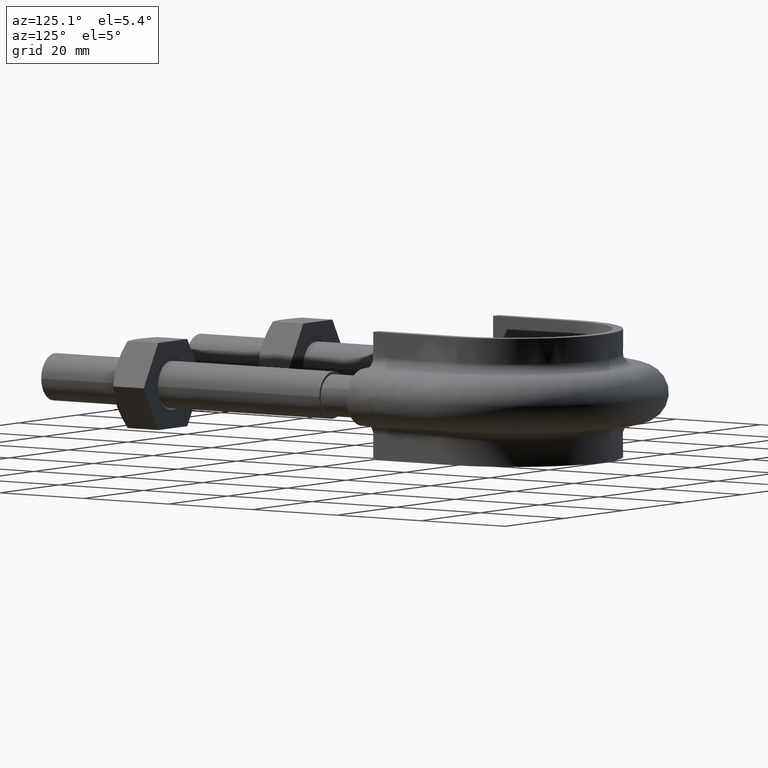
[diagram: clean part render]
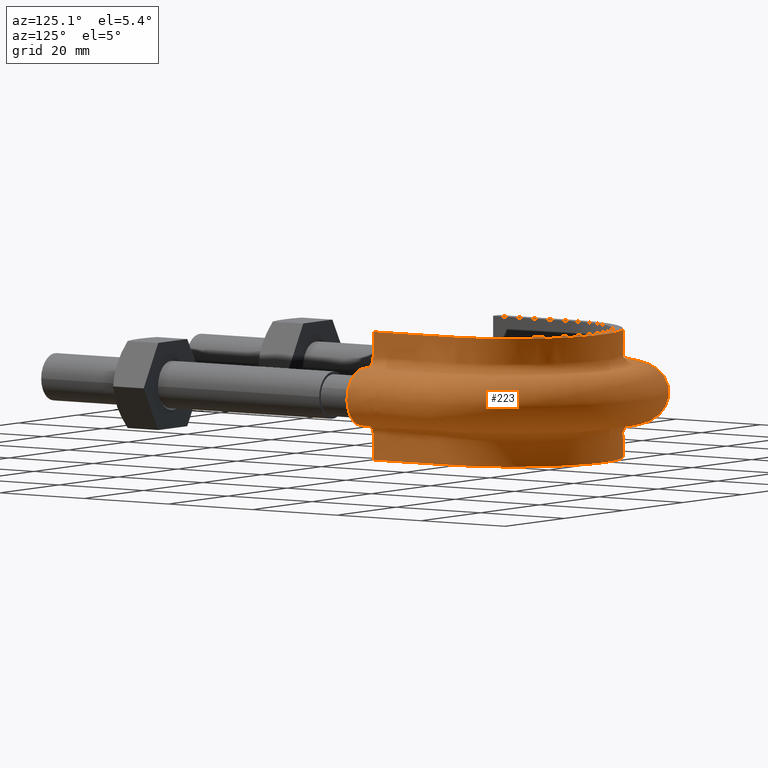
[diagram: same view with one face highlighted and labeled with its STEP entity id]
A machine part, auxiliary view. The second image highlights one B-rep face of the part: STEP entity #223.
In plain terms, the highlighted face is a freeform B-spline surface patch.
Its self-contained STEP definition (entity closure, byte-faithful):
#223 = ADVANCED_FACE( '', ( #303 ), #304, .F. );
#303 = FACE_OUTER_BOUND( '', #471, .T. );
#304 = B_SPLINE_SURFACE_WITH_KNOTS( '', 3, 3, ( ( #472, #473, #474, #475, #476, #477, #478, #479, #480, #481, #482, #483, #484, #485, #486, #487, #488 ), ( #489, #490, #491, #492, #493, #494, #495, #496, #497, #498, #499, #500, #501, #502, #503, #504, #505 ), ( #506, #507, #508, #509, #510, #511, #512, #513, #514, #515, #516, #517, #518, #519, #520, #521, #522 ), ( #523, #524, #525, #526, #527, #528, #529, #530, #531, #532, #533, #534, #535, #536, #537, #538, #539 ), ( #540, #541, #542, #543, #544, #545, #546, #547, #548, #549, #550, #551, #552, #553, #554, #555, #556 ), ( #557, #558, #559, #560, #561, #562, #563, #564, #565, #566, #567, #568, #569, #570, #571, #572, #573 ), ( #574, #575, #576, #577, #578, #579, #580, #581, #582, #583, #584, #585, #586, #587, #588, #589, #590 ), ( #591, #592, #593, #594, #595, #596, #597, #598, #599, #600, #601, #602, #603, #604, #605, #606, #607 ), ( #608, #609, #610, #611, #612, #613, #614, #615, #616, #617, #618, #619, #620, #621, #622, #623, #624 ), ( #625, #626, #627, #628, #629, #630, #631, #632, #633, #634, #635, #636, #637, #638, #639, #640, #641 ), ( #642, #643, #644, #645, #646, #647, #648, #649, #650, #651, #652, #653, #654, #655, #656, #657, #658 ), ( #659, #660, #661, #662, #663, #664, #665, #666, #667, #668, #669, #670, #671, #672, #673, #674, #675 ), ( #676, #677, #678, #679, #680, #681, #682, #683, #684, #685, #686, #687, #688, #689, #690, #691, #692 ), ( #693, #694, #695, #696, #697, #698, #699, #700, #701, #702, #703, #704, #705, #706, #707, #708, #709 ), ( #710, #711, #712, #713, #714, #715, #716, #717, #718, #719, #720, #721, #722, #723, #724, #725, #726 ), ( #727, #728, #729, #730, #731, #732, #733, #734, #735, #736, #737, #738, #739, #740, #741, #742, #743 ), ( #744, #745, #746, #747, #748, #749, #750, #751, #752, #753, #754, #755, #756, #757, #758, #759, #760 ), ( #761, #762, #763, #764, #765, #766, #767, #768, #769, #770, #771, #772, #773, #774, #775, #776, #777 ), ( #778, #779, #780, #781, #782, #783, #784, #785, #786, #787, #788, #789, #790, #791, #792, #793, #794 ), ( #795, #796, #797, #798, #799, #800, #801, #802, #803, #804, #805, #806, #807, #808, #809, #810, #811 ), ( #812, #813, #814, #815, #816, #817, #818, #819, #820, #821, #822, #823, #824, #825, #826, #827, #828 ), ( #829, #830, #831, #832, #833, #834, #835, #836, #837, #838, #839, #840, #841, #842, #843, #844, #845 ), ( #846, #847, #848, #849, #850, #851, #852, #853, #854, #855, #856, #857, #858, #859, #860, #861, #862 ), ( #863, #864, #865, #866, #867, #868, #869, #870, #871, #872, #873, #874, #875, #876, #877, #878, #879 ), ( #880, #881, #882, #883, #884, #885, #886, #887, #888, #889, #890, #891, #892, #893, #894, #895, #896 ), ( #897, #898, #899, #900, #901, #902, #903, #904, #905, #906, #907, #908, #909, #910, #911, #912, #913 ), ( #914, #915, #916, #917, #918, #919, #920, #921, #922, #923, #924, #925, #926, #927, #928, #929, #930 ), ( #931, #932, #933, #934, #935, #936, #937, #938, #939, #940, #941, #942, #943, #944, #945, #946, #947 ), ( #948, #949, #950, #951, #952, #953, #954, #955, #956, #957, #958, #959, #960, #961, #962, #963, #964 ), ( #965, #966, #967, #968, #969, #970, #971, #972, #973, #974, #975, #976, #977, #978, #979, #980, #981 ), ( #982, #983, #984, #985, #986, #987, #988, #989, #990, #991, #992, #993, #994, #995, #996, #997, #998 ) ), .UNSPECIFIED., .F., .F., .F., ( 4, 3, 1, 1, 1, 3, 3, 1, 1, 1, 3, 3, 1, 1, 1, 3, 4 ), ( 4, 3, 1, 1, 1, 1, 1, 1, 1, 3, 4 ), ( 0.000000000000000, 0.0526315789473684, 0.105263157894737, 0.157894736842105, 0.210526315789474, 0.263157894736842, 0.315789473684211, 0.368421052631579, 0.421052631578947, 0.473684210526316, 0.526315789473684, 0.578947368421053, 0.631578947368421, 0.684210526315789, 0.736842105263158, 0.789473684210526, 0.842105263157895 ), ( 0.000000000000000, 1.00000000000000, 1.50000000000000, 2.00000000000000, 3.00000000000000, 4.00000000000000, 5.00000000000000, 6.00000000000000, 6.50000000000000, 7.00000000000000, 8.00000000000000 ), .UNSPECIFIED. );
#471 = EDGE_LOOP( '', ( #1348, #1349, #1350, #1351 ) );
#472 = CARTESIAN_POINT( '', ( -21.2500000000000, 70.1500000000000, 12.5000000000000 ) );
#473 = CARTESIAN_POINT( '', ( -21.2500000000000, 77.3500000000000, 12.5000000000000 ) );
#474 = CARTESIAN_POINT( '', ( -21.2500000000000, 84.5500000000000, 12.5000000000000 ) );
#475 = CARTESIAN_POINT( '', ( -21.2500000000000, 91.7500000000000, 12.5000000000000 ) );
#476 = CARTESIAN_POINT( '', ( -21.2500000000000, 93.5968276779905, 12.5000000000000 ) );
#477 = CARTESIAN_POINT( '', ( -20.7521371065633, 97.3135873922127, 12.5000000000000 ) );
#478 = CARTESIAN_POINT( '', ( -17.9070504639151, 104.227019966525, 12.5000000000000 ) );
#479 = CARTESIAN_POINT( '', ( -11.1214577482373, 111.013883340208, 12.5000000000000 ) );
#480 = CARTESIAN_POINT( '', ( 1.91638327801740E-014, 113.993058329896, 12.5000000000000 ) );
#481 = CARTESIAN_POINT( '', ( 11.1214577482374, 111.013883340208, 12.5000000000000 ) );
#482 = CARTESIAN_POINT( '', ( 17.9070504639151, 104.227019966525, 12.5000000000000 ) );
#483 = CARTESIAN_POINT( '', ( 20.7521371065634, 97.3135873922127, 12.5000000000000 ) );
#484 = CARTESIAN_POINT( '', ( 21.2500000000000, 93.5968276779905, 12.5000000000000 ) );
#485 = CARTESIAN_POINT( '', ( 21.2500000000000, 91.7500000000000, 12.5000000000000 ) );
#486 = CARTESIAN_POINT( '', ( 21.2500000000000, 84.5500000000000, 12.5000000000000 ) );
#487 = CARTESIAN_POINT( '', ( 21.2500000000000, 77.3500000000000, 12.5000000000000 ) );
#488 = CARTESIAN_POINT( '', ( 21.2500000000000, 70.1500000000000, 12.5000000000000 ) );
#489 = CARTESIAN_POINT( '', ( -21.2500000000000, 70.1500000000000, 10.8666666666667 ) );
#490 = CARTESIAN_POINT( '', ( -21.2500000000000, 77.3500000000000, 10.8666666666667 ) );
#491 = CARTESIAN_POINT( '', ( -21.2500000000000, 84.5500000000000, 10.8666666666667 ) );
#492 = CARTESIAN_POINT( '', ( -21.2500000000000, 91.7500000000000, 10.8666666666667 ) );
#493 = CARTESIAN_POINT( '', ( -21.2500000000000, 93.5968276779905, 10.8666666666667 ) );
#494 = CARTESIAN_POINT( '', ( -20.7521371065633, 97.3135873922127, 10.8666666666667 ) );
#495 = CARTESIAN_POINT( '', ( -17.9070504639151, 104.227019966525, 10.8666666666667 ) );
#496 = CARTESIAN_POINT( '', ( -11.1214577482373, 111.013883340208, 10.8666666666667 ) );
#497 = CARTESIAN_POINT( '', ( 1.91638327801740E-014, 113.993058329896, 10.8666666666667 ) );
#498 = CARTESIAN_POINT( '', ( 11.1214577482374, 111.013883340208, 10.8666666666667 ) );
#499 = CARTESIAN_POINT( '', ( 17.9070504639151, 104.227019966525, 10.8666666666667 ) );
#500 = CARTESIAN_POINT( '', ( 20.7521371065634, 97.3135873922127, 10.8666666666667 ) );
#501 = CARTESIAN_POINT( '', ( 21.2500000000000, 93.5968276779905, 10.8666666666667 ) );
#502 = CARTESIAN_POINT( '', ( 21.2500000000000, 91.7500000000000, 10.8666666666667 ) );
#503 = CARTESIAN_POINT( '', ( 21.2500000000000, 84.5500000000000, 10.8666666666667 ) );
#504 = CARTESIAN_POINT( '', ( 21.2500000000000, 77.3500000000000, 10.8666666666667 ) );
#505 = CARTESIAN_POINT( '', ( 21.2500000000000, 70.1500000000000, 10.8666666666667 ) );
#506 = CARTESIAN_POINT( '', ( -21.2500000000000, 70.1500000000000, 9.23333333333333 ) );
#507 = CARTESIAN_POINT( '', ( -21.2500000000000, 77.3500000000000, 9.23333333333333 ) );
#508 = CARTESIAN_POINT( '', ( -21.2500000000000, 84.5500000000000, 9.23333333333333 ) );
#509 = CARTESIAN_POINT( '', ( -21.2500000000000, 91.7500000000000, 9.23333333333333 ) );
#510 = CARTESIAN_POINT( '', ( -21.2500000000000, 93.5968276779905, 9.23333333333333 ) );
#511 = CARTESIAN_POINT( '', ( -20.7521371065633, 97.3135873922127, 9.23333333333334 ) );
#512 = CARTESIAN_POINT( '', ( -17.9070504639151, 104.227019966525, 9.23333333333333 ) );
#513 = CARTESIAN_POINT( '', ( -11.1214577482373, 111.013883340208, 9.23333333333333 ) );
#514 = CARTESIAN_POINT( '', ( 2.00311945181624E-014, 113.993058329896, 9.23333333333333 ) );
#515 = CARTESIAN_POINT( '', ( 11.1214577482374, 111.013883340208, 9.23333333333333 ) );
#516 = CARTESIAN_POINT( '', ( 17.9070504639151, 104.227019966525, 9.23333333333333 ) );
#517 = CARTESIAN_POINT( '', ( 20.7521371065634, 97.3135873922127, 9.23333333333334 ) );
#518 = CARTESIAN_POINT( '', ( 21.2500000000000, 93.5968276779905, 9.23333333333333 ) );
#519 = CARTESIAN_POINT( '', ( 21.2500000000000, 91.7500000000000, 9.23333333333333 ) );
#520 = CARTESIAN_POINT( '', ( 21.2500000000000, 84.5500000000000, 9.23333333333333 ) );
#521 = CARTESIAN_POINT( '', ( 21.2500000000000, 77.3500000000000, 9.23333333333333 ) );
#522 = CARTESIAN_POINT( '', ( 21.2500000000000, 70.1500000000000, 9.23333333333333 ) );
#523 = CARTESIAN_POINT( '', ( -21.2500000000000, 70.1500000000000, 7.60000000000000 ) );
#524 = CARTESIAN_POINT( '', ( -21.2500000000000, 77.3500000000000, 7.60000000000000 ) );
#525 = CARTESIAN_POINT( '', ( -21.2500000000000, 84.5500000000000, 7.59999999999999 ) );
#526 = CARTESIAN_POINT( '', ( -21.2500000000000, 91.7500000000000, 7.59999999999999 ) );
#527 = CARTESIAN_POINT( '', ( -21.2500000000000, 93.5968276779905, 7.60000000000000 ) );
#528 = CARTESIAN_POINT( '', ( -20.7521371065633, 97.3135873922127, 7.60000000000000 ) );
#529 = CARTESIAN_POINT( '', ( -17.9070504639151, 104.227019966525, 7.59999999999999 ) );
#530 = CARTESIAN_POINT( '', ( -11.1214577482373, 111.013883340208, 7.60000000000000 ) );
#531 = CARTESIAN_POINT( '', ( 1.95975136491682E-014, 113.993058329896, 7.59999999999999 ) );
#532 = CARTESIAN_POINT( '', ( 11.1214577482374, 111.013883340208, 7.60000000000000 ) );
#533 = CARTESIAN_POINT( '', ( 17.9070504639151, 104.227019966525, 7.59999999999999 ) );
#534 = CARTESIAN_POINT( '', ( 20.7521371065634, 97.3135873922127, 7.60000000000000 ) );
#535 = CARTESIAN_POINT( '', ( 21.2500000000000, 93.5968276779905, 7.60000000000000 ) );
#536 = CARTESIAN_POINT( '', ( 21.2500000000000, 91.7500000000000, 7.60000000000000 ) );
#537 = CARTESIAN_POINT( '', ( 21.2500000000000, 84.5500000000000, 7.59999999999999 ) );
#538 = CARTESIAN_POINT( '', ( 21.2500000000000, 77.3500000000000, 7.60000000000000 ) );
#539 = CARTESIAN_POINT( '', ( 21.2500000000000, 70.1500000000000, 7.60000000000000 ) );
#540 = CARTESIAN_POINT( '', ( -21.2500000000000, 70.1500000000000, 7.33823584172333 ) );
#541 = CARTESIAN_POINT( '', ( -21.2500000000000, 77.3500000000000, 7.33823584172333 ) );
#542 = CARTESIAN_POINT( '', ( -21.2500000000000, 84.5500000000000, 7.33823584172332 ) );
#543 = CARTESIAN_POINT( '', ( -21.2500000000000, 91.7500000000000, 7.33823584172332 ) );
#544 = CARTESIAN_POINT( '', ( -21.2500000000000, 93.5968276779905, 7.33823584172333 ) );
#545 = CARTESIAN_POINT( '', ( -20.7521371065633, 97.3135873922127, 7.33823584172333 ) );
#546 = CARTESIAN_POINT( '', ( -17.9070504639151, 104.227019966525, 7.33823584172332 ) );
#547 = CARTESIAN_POINT( '', ( -11.1214577482373, 111.013883340208, 7.33823584172333 ) );
#548 = CARTESIAN_POINT( '', ( 1.87301519111798E-014, 113.993058329896, 7.33823584172332 ) );
#549 = CARTESIAN_POINT( '', ( 11.1214577482374, 111.013883340208, 7.33823584172332 ) );
#550 = CARTESIAN_POINT( '', ( 17.9070504639151, 104.227019966525, 7.33823584172332 ) );
#551 = CARTESIAN_POINT( '', ( 20.7521371065634, 97.3135873922127, 7.33823584172333 ) );
#552 = CARTESIAN_POINT( '', ( 21.2500000000000, 93.5968276779905, 7.33823584172333 ) );
#553 = CARTESIAN_POINT( '', ( 21.2500000000000, 91.7500000000000, 7.33823584172333 ) );
#554 = CARTESIAN_POINT( '', ( 21.2500000000000, 84.5500000000000, 7.33823584172332 ) );
#555 = CARTESIAN_POINT( '', ( 21.2500000000000, 77.3500000000000, 7.33823584172333 ) );
#556 = CARTESIAN_POINT( '', ( 21.2500000000000, 70.1500000000000, 7.33823584172333 ) );
#557 = CARTESIAN_POINT( '', ( -21.3541362568359, 70.1500000000000, 6.81470752517000 ) );
#558 = CARTESIAN_POINT( '', ( -21.3541362568359, 77.3500000000000, 6.81470752517000 ) );
#559 = CARTESIAN_POINT( '', ( -21.3541362568359, 84.5500000000000, 6.81470752517000 ) );
#560 = CARTESIAN_POINT( '', ( -21.3541362568359, 91.7500000000000, 6.81470752517000 ) );
#561 = CARTESIAN_POINT( '', ( -21.3541362568359, 93.6061287532978, 6.81470752517000 ) );
#562 = CARTESIAN_POINT( '', ( -20.8538774949210, 97.3407503100166, 6.81470752517001 ) );
#563 = CARTESIAN_POINT( '', ( -17.9947792079020, 104.288222799330, 6.81470752517000 ) );
#564 = CARTESIAN_POINT( '', ( -11.1759667686909, 111.108265182217, 6.81470752517000 ) );
#565 = CARTESIAN_POINT( '', ( 1.87435017692770E-014, 114.102071794145, 6.81470752517000 ) );
#566 = CARTESIAN_POINT( '', ( 11.1759667686909, 111.108265182217, 6.81470752517000 ) );
#567 = CARTESIAN_POINT( '', ( 17.9947792079020, 104.288222799330, 6.81470752517000 ) );
#568 = CARTESIAN_POINT( '', ( 20.8538774949210, 97.3407503100166, 6.81470752517001 ) );
#569 = CARTESIAN_POINT( '', ( 21.3541362568359, 93.6061287532978, 6.81470752517000 ) );
#570 = CARTESIAN_POINT( '', ( 21.3541362568359, 91.7500000000000, 6.81470752517000 ) );
#571 = CARTESIAN_POINT( '', ( 21.3541362568359, 84.5500000000000, 6.81470752517000 ) );
#572 = CARTESIAN_POINT( '', ( 21.3541362568359, 77.3500000000000, 6.81470752517000 ) );
#573 = CARTESIAN_POINT( '', ( 21.3541362568359, 70.1500000000000, 6.81470752517000 ) );
#574 = CARTESIAN_POINT( '', ( -21.7989687109389, 70.1500000000000, 6.14896871093887 ) );
#575 = CARTESIAN_POINT( '', ( -21.7989687109389, 77.3500000000000, 6.14896871093887 ) );
#576 = CARTESIAN_POINT( '', ( -21.7989687109389, 84.5500000000000, 6.14896871093887 ) );
#577 = CARTESIAN_POINT( '', ( -21.7989687109389, 91.7500000000000, 6.14896871093887 ) );
#578 = CARTESIAN_POINT( '', ( -21.7989687109389, 93.6458595855792, 6.14896871093887 ) );
#579 = CARTESIAN_POINT( '', ( -21.2884756647577, 97.4567804781293, 6.14896871093887 ) );
#580 = CARTESIAN_POINT( '', ( -18.3695246968295, 104.549659182216, 6.14896871093886 ) );
#581 = CARTESIAN_POINT( '', ( -11.4088096043740, 111.511430301450, 6.14896871093887 ) );
#582 = CARTESIAN_POINT( '', ( 1.92342084073907E-014, 114.567737915684, 6.14896871093886 ) );
#583 = CARTESIAN_POINT( '', ( 11.4088096043740, 111.511430301450, 6.14896871093887 ) );
#584 = CARTESIAN_POINT( '', ( 18.3695246968295, 104.549659182216, 6.14896871093887 ) );
#585 = CARTESIAN_POINT( '', ( 21.2884756647577, 97.4567804781293, 6.14896871093887 ) );
#586 = CARTESIAN_POINT( '', ( 21.7989687109389, 93.6458595855792, 6.14896871093887 ) );
#587 = CARTESIAN_POINT( '', ( 21.7989687109389, 91.7500000000000, 6.14896871093887 ) );
#588 = CARTESIAN_POINT( '', ( 21.7989687109389, 84.5500000000000, 6.14896871093887 ) );
#589 = CARTESIAN_POINT( '', ( 21.7989687109389, 77.3500000000000, 6.14896871093887 ) );
#590 = CARTESIAN_POINT( '', ( 21.7989687109389, 70.1500000000000, 6.14896871093887 ) );
#591 = CARTESIAN_POINT( '', ( -22.4647075251700, 70.1500000000000, 5.70413625683590 ) );
#592 = CARTESIAN_POINT( '', ( -22.4647075251700, 77.3500000000000, 5.70413625683590 ) );
#593 = CARTESIAN_POINT( '', ( -22.4647075251700, 84.5500000000000, 5.70413625683590 ) );
#594 = CARTESIAN_POINT( '', ( -22.4647075251700, 91.7500000000000, 5.70413625683590 ) );
#595 = CARTESIAN_POINT( '', ( -22.4647075251700, 93.7053209781269, 5.70413625683590 ) );
#596 = CARTESIAN_POINT( '', ( -21.9388977901791, 97.6304318963698, 5.70413625683590 ) );
#597 = CARTESIAN_POINT( '', ( -18.9303709550913, 104.940926379414, 5.70413625683590 ) );
#598 = CARTESIAN_POINT( '', ( -11.7572835340527, 112.114809542199, 5.70413625683590 ) );
#599 = CARTESIAN_POINT( '', ( 1.71511491571045E-014, 115.264656516656, 5.70413625683590 ) );
#600 = CARTESIAN_POINT( '', ( 11.7572835340528, 112.114809542199, 5.70413625683590 ) );
#601 = CARTESIAN_POINT( '', ( 18.9303709550913, 104.940926379414, 5.70413625683590 ) );
#602 = CARTESIAN_POINT( '', ( 21.9388977901791, 97.6304318963698, 5.70413625683590 ) );
#603 = CARTESIAN_POINT( '', ( 22.4647075251700, 93.7053209781269, 5.70413625683590 ) );
#604 = CARTESIAN_POINT( '', ( 22.4647075251700, 91.7500000000000, 5.70413625683590 ) );
#605 = CARTESIAN_POINT( '', ( 22.4647075251700, 84.5500000000000, 5.70413625683590 ) );
#606 = CARTESIAN_POINT( '', ( 22.4647075251700, 77.3500000000000, 5.70413625683590 ) );
#607 = CARTESIAN_POINT( '', ( 22.4647075251700, 70.1500000000000, 5.70413625683590 ) );
#608 = CARTESIAN_POINT( '', ( -22.9882358417233, 70.1500000000000, 5.59999999999999 ) );
#609 = CARTESIAN_POINT( '', ( -22.9882358417233, 77.3500000000000, 5.59999999999999 ) );
#610 = CARTESIAN_POINT( '', ( -22.9882358417233, 84.5500000000000, 5.59999999999999 ) );
#611 = CARTESIAN_POINT( '', ( -22.9882358417233, 91.7500000000000, 5.59999999999999 ) );
#612 = CARTESIAN_POINT( '', ( -22.9882358417233, 93.7520806413387, 5.59999999999999 ) );
#613 = CARTESIAN_POINT( '', ( -22.4503812625138, 97.7669891057666, 5.60000000000000 ) );
#614 = CARTESIAN_POINT( '', ( -19.3714131343311, 105.248613797802, 5.59999999999999 ) );
#615 = CARTESIAN_POINT( '', ( -12.0313188852559, 112.589299103871, 5.59999999999999 ) );
#616 = CARTESIAN_POINT( '', ( 1.85193060329133E-014, 115.812704210650, 5.59999999999999 ) );
#617 = CARTESIAN_POINT( '', ( 12.0313188852560, 112.589299103871, 5.59999999999999 ) );
#618 = CARTESIAN_POINT( '', ( 19.3714131343312, 105.248613797802, 5.59999999999999 ) );
#619 = CARTESIAN_POINT( '', ( 22.4503812625138, 97.7669891057665, 5.60000000000000 ) );
#620 = CARTESIAN_POINT( '', ( 22.9882358417234, 93.7520806413387, 5.59999999999999 ) );
#621 = CARTESIAN_POINT( '', ( 22.9882358417234, 91.7500000000000, 5.59999999999999 ) );
#622 = CARTESIAN_POINT( '', ( 22.9882358417234, 84.5500000000000, 5.59999999999999 ) );
#623 = CARTESIAN_POINT( '', ( 22.9882358417234, 77.3500000000000, 5.59999999999999 ) );
#624 = CARTESIAN_POINT( '', ( 22.9882358417233, 70.1500000000000, 5.59999999999999 ) );
#625 = CARTESIAN_POINT( '', ( -23.2500000000000, 70.1500000000000, 5.59999999999999 ) );
#626 = CARTESIAN_POINT( '', ( -23.2500000000000, 77.3500000000000, 5.59999999999999 ) );
#627 = CARTESIAN_POINT( '', ( -23.2500000000000, 84.5500000000000, 5.59999999999999 ) );
#628 = CARTESIAN_POINT( '', ( -23.2500000000000, 91.7500000000000, 5.59999999999999 ) );
#629 = CARTESIAN_POINT( '', ( -23.2500000000000, 93.7754604729446, 5.59999999999999 ) );
#630 = CARTESIAN_POINT( '', ( -22.7061229986812, 97.8352677104650, 5.60000000000000 ) );
#631 = CARTESIAN_POINT( '', ( -19.5919342239511, 105.402457506996, 5.59999999999999 ) );
#632 = CARTESIAN_POINT( '', ( -12.1683365608575, 112.826543884707, 5.59999999999999 ) );
#633 = CARTESIAN_POINT( '', ( 1.81191822983322E-014, 116.086728057646, 5.59999999999999 ) );
#634 = CARTESIAN_POINT( '', ( 12.1683365608576, 112.826543884707, 5.59999999999999 ) );
#635 = CARTESIAN_POINT( '', ( 19.5919342239511, 105.402457506996, 5.59999999999999 ) );
#636 = CARTESIAN_POINT( '', ( 22.7061229986812, 97.8352677104649, 5.60000000000000 ) );
#637 = CARTESIAN_POINT( '', ( 23.2500000000000, 93.7754604729446, 5.59999999999999 ) );
#638 = CARTESIAN_POINT( '', ( 23.2500000000000, 91.7500000000000, 5.59999999999999 ) );
#639 = CARTESIAN_POINT( '', ( 23.2500000000000, 84.5500000000000, 5.59999999999999 ) );
#640 = CARTESIAN_POINT( '', ( 23.2500000000000, 77.3500000000000, 5.59999999999999 ) );
#641 = CARTESIAN_POINT( '', ( 23.2500000000000, 70.1500000000000, 5.59999999999999 ) );
#642 = CARTESIAN_POINT( '', ( -23.6666666666667, 70.1500000000000, 5.60000000000001 ) );
#643 = CARTESIAN_POINT( '', ( -23.6666666666667, 77.3500000000000, 5.60000000000001 ) );
#644 = CARTESIAN_POINT( '', ( -23.6666666666667, 84.5500000000000, 5.60000000000001 ) );
#645 = CARTESIAN_POINT( '', ( -23.6666666666667, 91.7500000000000, 5.60000000000001 ) );
#646 = CARTESIAN_POINT( '', ( -23.6666666666667, 93.8126756385600, 5.60000000000001 ) );
#647 = CARTESIAN_POINT( '', ( -23.1132033928724, 97.9439511101008, 5.60000000000001 ) );
#648 = CARTESIAN_POINT( '', ( -19.9429516739586, 105.647340327928, 5.60000000000000 ) );
#649 = CARTESIAN_POINT( '', ( -12.3864363134868, 113.204181498144, 5.60000000000001 ) );
#650 = CARTESIAN_POINT( '', ( 1.99073208003801E-014, 116.522909250928, 5.60000000000000 ) );
#651 = CARTESIAN_POINT( '', ( 12.3864363134868, 113.204181498144, 5.60000000000001 ) );
#652 = CARTESIAN_POINT( '', ( 19.9429516739586, 105.647340327928, 5.60000000000001 ) );
#653 = CARTESIAN_POINT( '', ( 23.1132033928724, 97.9439511101008, 5.60000000000001 ) );
#654 = CARTESIAN_POINT( '', ( 23.6666666666667, 93.8126756385600, 5.60000000000001 ) );
#655 = CARTESIAN_POINT( '', ( 23.6666666666667, 91.7500000000000, 5.60000000000001 ) );
#656 = CARTESIAN_POINT( '', ( 23.6666666666667, 84.5500000000000, 5.60000000000001 ) );
#657 = CARTESIAN_POINT( '', ( 23.6666666666667, 77.3500000000000, 5.60000000000001 ) );
#658 = CARTESIAN_POINT( '', ( 23.6666666666667, 70.1500000000000, 5.60000000000001 ) );
#659 = CARTESIAN_POINT( '', ( -24.0833333333333, 70.1500000000000, 5.60000000000001 ) );
#660 = CARTESIAN_POINT( '', ( -24.0833333333333, 77.3500000000000, 5.60000000000001 ) );
#661 = CARTESIAN_POINT( '', ( -24.0833333333333, 84.5500000000000, 5.60000000000001 ) );
#662 = CARTESIAN_POINT( '', ( -24.0833333333333, 91.7500000000000, 5.60000000000001 ) );
#663 = CARTESIAN_POINT( '', ( -24.0833333333333, 93.8498908041754, 5.60000000000001 ) );
#664 = CARTESIAN_POINT( '', ( -23.5202837870636, 98.0526345097367, 5.60000000000001 ) );
#665 = CARTESIAN_POINT( '', ( -20.2939691239661, 105.892223148859, 5.60000000000000 ) );
#666 = CARTESIAN_POINT( '', ( -12.6045360661160, 113.581819111582, 5.60000000000001 ) );
#667 = CARTESIAN_POINT( '', ( 1.99607358264511E-014, 116.959090444209, 5.60000000000000 ) );
#668 = CARTESIAN_POINT( '', ( 12.6045360661160, 113.581819111582, 5.60000000000001 ) );
#669 = CARTESIAN_POINT( '', ( 20.2939691239661, 105.892223148859, 5.60000000000001 ) );
#670 = CARTESIAN_POINT( '', ( 23.5202837870636, 98.0526345097367, 5.60000000000001 ) );
#671 = CARTESIAN_POINT( '', ( 24.0833333333334, 93.8498908041754, 5.60000000000001 ) );
#672 = CARTESIAN_POINT( '', ( 24.0833333333334, 91.7500000000000, 5.60000000000001 ) );
#673 = CARTESIAN_POINT( '', ( 24.0833333333334, 84.5500000000000, 5.60000000000001 ) );
#674 = CARTESIAN_POINT( '', ( 24.0833333333334, 77.3500000000000, 5.60000000000001 ) );
#675 = CARTESIAN_POINT( '', ( 24.0833333333334, 70.1500000000000, 5.60000000000001 ) );
#676 = CARTESIAN_POINT( '', ( -24.5000000000000, 70.1500000000000, 5.60000000000001 ) );
#677 = CARTESIAN_POINT( '', ( -24.5000000000000, 77.3500000000000, 5.60000000000001 ) );
#678 = CARTESIAN_POINT( '', ( -24.5000000000000, 84.5500000000000, 5.60000000000001 ) );
#679 = CARTESIAN_POINT( '', ( -24.5000000000000, 91.7500000000000, 5.60000000000001 ) );
#680 = CARTESIAN_POINT( '', ( -24.5000000000000, 93.8871059697909, 5.60000000000001 ) );
#681 = CARTESIAN_POINT( '', ( -23.9273641812548, 98.1613179093726, 5.60000000000001 ) );
#682 = CARTESIAN_POINT( '', ( -20.6449865739735, 106.137105969791, 5.60000000000000 ) );
#683 = CARTESIAN_POINT( '', ( -12.8226358187452, 113.959456725019, 5.60000000000001 ) );
#684 = CARTESIAN_POINT( '', ( 1.95804699835279E-014, 117.395271637490, 5.60000000000000 ) );
#685 = CARTESIAN_POINT( '', ( 12.8226358187452, 113.959456725019, 5.60000000000001 ) );
#686 = CARTESIAN_POINT( '', ( 20.6449865739736, 106.137105969791, 5.60000000000001 ) );
#687 = CARTESIAN_POINT( '', ( 23.9273641812548, 98.1613179093726, 5.60000000000001 ) );
#688 = CARTESIAN_POINT( '', ( 24.5000000000000, 93.8871059697909, 5.60000000000001 ) );
#689 = CARTESIAN_POINT( '', ( 24.5000000000000, 91.7500000000000, 5.60000000000001 ) );
#690 = CARTESIAN_POINT( '', ( 24.5000000000000, 84.5500000000000, 5.60000000000001 ) );
#691 = CARTESIAN_POINT( '', ( 24.5000000000000, 77.3500000000000, 5.60000000000001 ) );
#692 = CARTESIAN_POINT( '', ( 24.5000000000000, 70.1500000000000, 5.60000000000001 ) );
#693 = CARTESIAN_POINT( '', ( -25.9627416997969, 70.1500000000000, 5.60000000000001 ) );
#694 = CARTESIAN_POINT( '', ( -25.9627416997969, 77.3500000000000, 5.60000000000001 ) );
#695 = CARTESIAN_POINT( '', ( -25.9627416997969, 84.5500000000000, 5.60000000000001 ) );
#696 = CARTESIAN_POINT( '', ( -25.9627416997969, 91.7500000000000, 5.60000000000001 ) );
#697 = CARTESIAN_POINT( '', ( -25.9627416997969, 94.0177527888562, 5.60000000000001 ) );
#698 = CARTESIAN_POINT( '', ( -25.3564525038626, 98.5428596871080, 5.60000000000002 ) );
#699 = CARTESIAN_POINT( '', ( -21.8772614415312, 106.996786722768, 5.60000000000001 ) );
#700 = CARTESIAN_POINT( '', ( -13.5882924656719, 115.285183808027, 5.60000000000001 ) );
#701 = CARTESIAN_POINT( '', ( 1.89006259720110E-014, 118.926520645682, 5.60000000000001 ) );
#702 = CARTESIAN_POINT( '', ( 13.5882924656720, 115.285183808027, 5.60000000000001 ) );
#703 = CARTESIAN_POINT( '', ( 21.8772614415312, 106.996786722768, 5.60000000000001 ) );
#704 = CARTESIAN_POINT( '', ( 25.3564525038627, 98.5428596871080, 5.60000000000002 ) );
#705 = CARTESIAN_POINT( '', ( 25.9627416997970, 94.0177527888562, 5.60000000000001 ) );
#706 = CARTESIAN_POINT( '', ( 25.9627416997970, 91.7500000000000, 5.60000000000001 ) );
#707 = CARTESIAN_POINT( '', ( 25.9627416997970, 84.5500000000000, 5.60000000000001 ) );
#708 = CARTESIAN_POINT( '', ( 25.9627416997970, 77.3500000000000, 5.60000000000001 ) );
#709 = CARTESIAN_POINT( '', ( 25.9627416997970, 70.1500000000000, 5.60000000000001 ) );
#710 = CARTESIAN_POINT( '', ( -28.8882250993908, 70.1500000000000, 4.38822509939087 ) );
#711 = CARTESIAN_POINT( '', ( -28.8882250993908, 77.3500000000000, 4.38822509939087 ) );
#712 = CARTESIAN_POINT( '', ( -28.8882250993908, 84.5500000000000, 4.38822509939087 ) );
#713 = CARTESIAN_POINT( '', ( -28.8882250993908, 91.7500000000000, 4.38822509939087 ) );
#714 = CARTESIAN_POINT( '', ( -28.8882250993908, 94.2790464269868, 4.38822509939087 ) );
#715 = CARTESIAN_POINT( '', ( -28.2146291490783, 99.3059432425789, 4.38822509939088 ) );
#716 = CARTESIAN_POINT( '', ( -24.3418111766465, 108.716148228722, 4.38822509939087 ) );
#717 = CARTESIAN_POINT( '', ( -15.1196057595255, 117.936637974043, 4.38822509939087 ) );
#718 = CARTESIAN_POINT( '', ( 2.10103849009309E-014, 121.989018662065, 4.38822509939087 ) );
#719 = CARTESIAN_POINT( '', ( 15.1196057595255, 117.936637974043, 4.38822509939087 ) );
#720 = CARTESIAN_POINT( '', ( 24.3418111766465, 108.716148228722, 4.38822509939087 ) );
#721 = CARTESIAN_POINT( '', ( 28.2146291490784, 99.3059432425789, 4.38822509939087 ) );
#722 = CARTESIAN_POINT( '', ( 28.8882250993909, 94.2790464269868, 4.38822509939087 ) );
#723 = CARTESIAN_POINT( '', ( 28.8882250993909, 91.7500000000000, 4.38822509939087 ) );
#724 = CARTESIAN_POINT( '', ( 28.8882250993909, 84.5500000000000, 4.38822509939087 ) );
#725 = CARTESIAN_POINT( '', ( 28.8882250993909, 77.3500000000000, 4.38822509939087 ) );
#726 = CARTESIAN_POINT( '', ( 28.8882250993909, 70.1500000000000, 4.38822509939087 ) );
#727 = CARTESIAN_POINT( '', ( -30.7058874503046, 70.1500000000000, 9.94452457394279E-015 ) );
#728 = CARTESIAN_POINT( '', ( -30.7058874503046, 77.3500000000000, 9.94452457394279E-015 ) );
#729 = CARTESIAN_POINT( '', ( -30.7058874503046, 84.5500000000000, 9.94452457394278E-015 ) );
#730 = CARTESIAN_POINT( '', ( -30.7058874503046, 91.7500000000000, 9.94452457394278E-015 ) );
#731 = CARTESIAN_POINT( '', ( -30.7058874503046, 94.4413934800001, 9.94452457394279E-015 ) );
#732 = CARTESIAN_POINT( '', ( -29.9904724442379, 99.7800625794288, 9.94452457394280E-015 ) );
#733 = CARTESIAN_POINT( '', ( -25.8730860647882, 109.784422510304, 9.94452457394278E-015 ) );
#734 = CARTESIAN_POINT( '', ( -16.0710418613600, 119.584040387405, 9.94452457394279E-015 ) );
#735 = CARTESIAN_POINT( '', ( 2.21107637953890E-014, 123.891810981755, 9.94452457394278E-015 ) );
#736 = CARTESIAN_POINT( '', ( 16.0710418613600, 119.584040387405, 9.94452457394279E-015 ) );
#737 = CARTESIAN_POINT( '', ( 25.8730860647882, 109.784422510304, 9.94452457394278E-015 ) );
#738 = CARTESIAN_POINT( '', ( 29.9904724442379, 99.7800625794288, 9.94452457394279E-015 ) );
#739 = CARTESIAN_POINT( '', ( 30.7058874503046, 94.4413934800001, 9.94452457394279E-015 ) );
#740 = CARTESIAN_POINT( '', ( 30.7058874503046, 91.7500000000000, 9.94452457394279E-015 ) );
#741 = CARTESIAN_POINT( '', ( 30.7058874503046, 84.5500000000000, 9.94452457394278E-015 ) );
#742 = CARTESIAN_POINT( '', ( 30.7058874503046, 77.3500000000000, 9.94452457394279E-015 ) );
#743 = CARTESIAN_POINT( '', ( 30.7058874503046, 70.1500000000000, 9.94452457394279E-015 ) );
#744 = CARTESIAN_POINT( '', ( -28.8882250993909, 70.1500000000000, -4.38822509939085 ) );
#745 = CARTESIAN_POINT( '', ( -28.8882250993908, 77.3500000000000, -4.38822509939085 ) );
#746 = CARTESIAN_POINT( '', ( -28.8882250993908, 84.5500000000000, -4.38822509939085 ) );
#747 = CARTESIAN_POINT( '', ( -28.8882250993908, 91.7500000000000, -4.38822509939085 ) );
#748 = CARTESIAN_POINT( '', ( -28.8882250993909, 94.2790464269868, -4.38822509939085 ) );
#749 = CARTESIAN_POINT( '', ( -28.2146291490783, 99.3059432425789, -4.38822509939085 ) );
#750 = CARTESIAN_POINT( '', ( -24.3418111766465, 108.716148228722, -4.38822509939085 ) );
#751 = CARTESIAN_POINT( '', ( -15.1196057595254, 117.936637974043, -4.38822509939085 ) );
#752 = CARTESIAN_POINT( '', ( 2.53471935908730E-014, 121.989018662065, -4.38822509939085 ) );
#753 = CARTESIAN_POINT( '', ( 15.1196057595255, 117.936637974043, -4.38822509939085 ) );
#754 = CARTESIAN_POINT( '', ( 24.3418111766465, 108.716148228722, -4.38822509939085 ) );
#755 = CARTESIAN_POINT( '', ( 28.2146291490784, 99.3059432425789, -4.38822509939085 ) );
#756 = CARTESIAN_POINT( '', ( 28.8882250993909, 94.2790464269868, -4.38822509939085 ) );
#757 = CARTESIAN_POINT( '', ( 28.8882250993909, 91.7500000000000, -4.38822509939085 ) );
#758 = CARTESIAN_POINT( '', ( 28.8882250993909, 84.5500000000000, -4.38822509939085 ) );
#759 = CARTESIAN_POINT( '', ( 28.8882250993909, 77.3500000000000, -4.38822509939085 ) );
#760 = CARTESIAN_POINT( '', ( 28.8882250993909, 70.1500000000000, -4.38822509939085 ) );
#761 = CARTESIAN_POINT( '', ( -25.9627416997969, 70.1500000000000, -5.59999999999999 ) );
#762 = CARTESIAN_POINT( '', ( -25.9627416997969, 77.3500000000000, -5.59999999999999 ) );
#763 = CARTESIAN_POINT( '', ( -25.9627416997969, 84.5500000000000, -5.59999999999999 ) );
#764 = CARTESIAN_POINT( '', ( -25.9627416997969, 91.7500000000000, -5.59999999999999 ) );
#765 = CARTESIAN_POINT( '', ( -25.9627416997969, 94.0177527888562, -5.59999999999999 ) );
#766 = CARTESIAN_POINT( '', ( -25.3564525038626, 98.5428596871080, -5.60000000000000 ) );
#767 = CARTESIAN_POINT( '', ( -21.8772614415312, 106.996786722768, -5.59999999999999 ) );
#768 = CARTESIAN_POINT( '', ( -13.5882924656719, 115.285183808027, -5.59999999999999 ) );
#769 = CARTESIAN_POINT( '', ( 2.67068816139067E-014, 118.926520645682, -5.59999999999999 ) );
#770 = CARTESIAN_POINT( '', ( 13.5882924656720, 115.285183808027, -5.59999999999999 ) );
#771 = CARTESIAN_POINT( '', ( 21.8772614415312, 106.996786722768, -5.59999999999999 ) );
#772 = CARTESIAN_POINT( '', ( 25.3564525038627, 98.5428596871080, -5.60000000000000 ) );
#773 = CARTESIAN_POINT( '', ( 25.9627416997970, 94.0177527888562, -5.59999999999999 ) );
#774 = CARTESIAN_POINT( '', ( 25.9627416997970, 91.7500000000000, -5.59999999999999 ) );
#775 = CARTESIAN_POINT( '', ( 25.9627416997970, 84.5500000000000, -5.59999999999999 ) );
#776 = CARTESIAN_POINT( '', ( 25.9627416997970, 77.3500000000000, -5.59999999999999 ) );
#777 = CARTESIAN_POINT( '', ( 25.9627416997970, 70.1500000000000, -5.59999999999999 ) );
#778 = CARTESIAN_POINT( '', ( -24.5000000000000, 70.1500000000000, -5.59999999999999 ) );
#779 = CARTESIAN_POINT( '', ( -24.5000000000000, 77.3500000000000, -5.59999999999999 ) );
#780 = CARTESIAN_POINT( '', ( -24.5000000000000, 84.5500000000000, -5.59999999999999 ) );
#781 = CARTESIAN_POINT( '', ( -24.5000000000000, 91.7500000000000, -5.59999999999999 ) );
#782 = CARTESIAN_POINT( '', ( -24.5000000000000, 93.8871059697909, -5.59999999999999 ) );
#783 = CARTESIAN_POINT( '', ( -23.9273641812548, 98.1613179093726, -5.60000000000000 ) );
#784 = CARTESIAN_POINT( '', ( -20.6449865739735, 106.137105969791, -5.59999999999999 ) );
#785 = CARTESIAN_POINT( '', ( -12.8226358187452, 113.959456725019, -5.59999999999999 ) );
#786 = CARTESIAN_POINT( '', ( 2.69530447564293E-014, 117.395271637490, -5.59999999999999 ) );
#787 = CARTESIAN_POINT( '', ( 12.8226358187452, 113.959456725019, -5.59999999999999 ) );
#788 = CARTESIAN_POINT( '', ( 20.6449865739736, 106.137105969791, -5.59999999999999 ) );
#789 = CARTESIAN_POINT( '', ( 23.9273641812548, 98.1613179093726, -5.60000000000000 ) );
#790 = CARTESIAN_POINT( '', ( 24.5000000000000, 93.8871059697909, -5.59999999999999 ) );
#791 = CARTESIAN_POINT( '', ( 24.5000000000000, 91.7500000000000, -5.59999999999999 ) );
#792 = CARTESIAN_POINT( '', ( 24.5000000000000, 84.5500000000000, -5.59999999999999 ) );
#793 = CARTESIAN_POINT( '', ( 24.5000000000000, 77.3500000000000, -5.59999999999999 ) );
#794 = CARTESIAN_POINT( '', ( 24.5000000000000, 70.1500000000000, -5.59999999999999 ) );
#795 = CARTESIAN_POINT( '', ( -24.0833333333333, 70.1500000000000, -5.59999999999999 ) );
#796 = CARTESIAN_POINT( '', ( -24.0833333333333, 77.3500000000000, -5.59999999999999 ) );
#797 = CARTESIAN_POINT( '', ( -24.0833333333333, 84.5500000000000, -5.59999999999999 ) );
#798 = CARTESIAN_POINT( '', ( -24.0833333333333, 91.7500000000000, -5.59999999999999 ) );
#799 = CARTESIAN_POINT( '', ( -24.0833333333333, 93.8498908041755, -5.59999999999999 ) );
#800 = CARTESIAN_POINT( '', ( -23.5202837870636, 98.0526345097367, -5.59999999999999 ) );
#801 = CARTESIAN_POINT( '', ( -20.2939691239661, 105.892223148859, -5.59999999999999 ) );
#802 = CARTESIAN_POINT( '', ( -12.6045360661160, 113.581819111582, -5.59999999999999 ) );
#803 = CARTESIAN_POINT( '', ( 2.25628210404163E-014, 116.959090444209, -5.59999999999999 ) );
#804 = CARTESIAN_POINT( '', ( 12.6045360661160, 113.581819111582, -5.59999999999999 ) );
#805 = CARTESIAN_POINT( '', ( 20.2939691239661, 105.892223148859, -5.59999999999999 ) );
#806 = CARTESIAN_POINT( '', ( 23.5202837870636, 98.0526345097367, -5.59999999999999 ) );
#807 = CARTESIAN_POINT( '', ( 24.0833333333334, 93.8498908041754, -5.59999999999999 ) );
#808 = CARTESIAN_POINT( '', ( 24.0833333333334, 91.7500000000000, -5.59999999999999 ) );
#809 = CARTESIAN_POINT( '', ( 24.0833333333334, 84.5500000000000, -5.59999999999999 ) );
#810 = CARTESIAN_POINT( '', ( 24.0833333333334, 77.3500000000000, -5.59999999999999 ) );
#811 = CARTESIAN_POINT( '', ( 24.0833333333334, 70.1500000000000, -5.59999999999999 ) );
#812 = CARTESIAN_POINT( '', ( -23.6666666666667, 70.1500000000000, -5.59999999999999 ) );
#813 = CARTESIAN_POINT( '', ( -23.6666666666667, 77.3500000000000, -5.59999999999999 ) );
#814 = CARTESIAN_POINT( '', ( -23.6666666666667, 84.5500000000000, -5.59999999999999 ) );
#815 = CARTESIAN_POINT( '', ( -23.6666666666667, 91.7500000000000, -5.59999999999999 ) );
#816 = CARTESIAN_POINT( '', ( -23.6666666666667, 93.8126756385600, -5.59999999999999 ) );
#817 = CARTESIAN_POINT( '', ( -23.1132033928724, 97.9439511101009, -5.59999999999999 ) );
#818 = CARTESIAN_POINT( '', ( -19.9429516739586, 105.647340327928, -5.59999999999999 ) );
#819 = CARTESIAN_POINT( '', ( -12.3864363134868, 113.204181498144, -5.59999999999999 ) );
#820 = CARTESIAN_POINT( '', ( 2.29430868833395E-014, 116.522909250928, -5.59999999999999 ) );
#821 = CARTESIAN_POINT( '', ( 12.3864363134868, 113.204181498144, -5.59999999999999 ) );
#822 = CARTESIAN_POINT( '', ( 19.9429516739586, 105.647340327928, -5.59999999999999 ) );
#823 = CARTESIAN_POINT( '', ( 23.1132033928724, 97.9439511101008, -5.59999999999999 ) );
#824 = CARTESIAN_POINT( '', ( 23.6666666666667, 93.8126756385600, -5.59999999999999 ) );
#825 = CARTESIAN_POINT( '', ( 23.6666666666667, 91.7500000000000, -5.59999999999999 ) );
#826 = CARTESIAN_POINT( '', ( 23.6666666666667, 84.5500000000000, -5.59999999999999 ) );
#827 = CARTESIAN_POINT( '', ( 23.6666666666667, 77.3500000000000, -5.59999999999999 ) );
#828 = CARTESIAN_POINT( '', ( 23.6666666666667, 70.1500000000000, -5.59999999999999 ) );
#829 = CARTESIAN_POINT( '', ( -23.2500000000000, 70.1500000000000, -5.59999999999999 ) );
#830 = CARTESIAN_POINT( '', ( -23.2500000000000, 77.3500000000000, -5.59999999999999 ) );
#831 = CARTESIAN_POINT( '', ( -23.2500000000000, 84.5500000000000, -5.59999999999999 ) );
#832 = CARTESIAN_POINT( '', ( -23.2500000000000, 91.7500000000000, -5.59999999999999 ) );
#833 = CARTESIAN_POINT( '', ( -23.2500000000000, 93.7754604729446, -5.59999999999999 ) );
#834 = CARTESIAN_POINT( '', ( -22.7061229986812, 97.8352677104650, -5.59999999999999 ) );
#835 = CARTESIAN_POINT( '', ( -19.5919342239511, 105.402457506996, -5.59999999999999 ) );
#836 = CARTESIAN_POINT( '', ( -12.1683365608576, 112.826543884707, -5.59999999999999 ) );
#837 = CARTESIAN_POINT( '', ( 2.11549483812917E-014, 116.086728057647, -5.59999999999999 ) );
#838 = CARTESIAN_POINT( '', ( 12.1683365608576, 112.826543884707, -5.59999999999999 ) );
#839 = CARTESIAN_POINT( '', ( 19.5919342239511, 105.402457506996, -5.59999999999999 ) );
#840 = CARTESIAN_POINT( '', ( 22.7061229986812, 97.8352677104650, -5.59999999999999 ) );
#841 = CARTESIAN_POINT( '', ( 23.2500000000000, 93.7754604729446, -5.59999999999999 ) );
#842 = CARTESIAN_POINT( '', ( 23.2500000000000, 91.7500000000000, -5.59999999999999 ) );
#843 = CARTESIAN_POINT( '', ( 23.2500000000000, 84.5500000000000, -5.59999999999999 ) );
#844 = CARTESIAN_POINT( '', ( 23.2500000000000, 77.3500000000000, -5.59999999999999 ) );
#845 = CARTESIAN_POINT( '', ( 23.2500000000000, 70.1500000000000, -5.59999999999999 ) );
#846 = CARTESIAN_POINT( '', ( -22.9882358417233, 70.1500000000000, -5.59999999999999 ) );
#847 = CARTESIAN_POINT( '', ( -22.9882358417233, 77.3500000000000, -5.59999999999999 ) );
#848 = CARTESIAN_POINT( '', ( -22.9882358417233, 84.5500000000000, -5.59999999999999 ) );
#849 = CARTESIAN_POINT( '', ( -22.9882358417233, 91.7500000000000, -5.59999999999999 ) );
#850 = CARTESIAN_POINT( '', ( -22.9882358417233, 93.7520806413387, -5.59999999999999 ) );
#851 = CARTESIAN_POINT( '', ( -22.4503812625138, 97.7669891057666, -5.59999999999999 ) );
#852 = CARTESIAN_POINT( '', ( -19.3714131343311, 105.248613797802, -5.59999999999999 ) );
#853 = CARTESIAN_POINT( '', ( -12.0313188852559, 112.589299103871, -5.59999999999999 ) );
#854 = CARTESIAN_POINT( '', ( 2.06877103778843E-014, 115.812704210650, -5.59999999999998 ) );
#855 = CARTESIAN_POINT( '', ( 12.0313188852560, 112.589299103871, -5.59999999999999 ) );
#856 = CARTESIAN_POINT( '', ( 19.3714131343312, 105.248613797802, -5.59999999999999 ) );
#857 = CARTESIAN_POINT( '', ( 22.4503812625139, 97.7669891057665, -5.59999999999999 ) );
#858 = CARTESIAN_POINT( '', ( 22.9882358417234, 93.7520806413387, -5.59999999999999 ) );
#859 = CARTESIAN_POINT( '', ( 22.9882358417234, 91.7500000000000, -5.59999999999999 ) );
#860 = CARTESIAN_POINT( '', ( 22.9882358417234, 84.5500000000000, -5.59999999999999 ) );
#861 = CARTESIAN_POINT( '', ( 22.9882358417234, 77.3500000000000, -5.59999999999999 ) );
#862 = CARTESIAN_POINT( '', ( 22.9882358417234, 70.1500000000000, -5.59999999999999 ) );
#863 = CARTESIAN_POINT( '', ( -22.4647075251700, 70.1500000000000, -5.70413625683590 ) );
#864 = CARTESIAN_POINT( '', ( -22.4647075251700, 77.3500000000000, -5.70413625683590 ) );
#865 = CARTESIAN_POINT( '', ( -22.4647075251700, 84.5500000000000, -5.70413625683589 ) );
#866 = CARTESIAN_POINT( '', ( -22.4647075251700, 91.7500000000000, -5.70413625683589 ) );
#867 = CARTESIAN_POINT( '', ( -22.4647075251700, 93.7053209781269, -5.70413625683590 ) );
#868 = CARTESIAN_POINT( '', ( -21.9388977901791, 97.6304318963698, -5.70413625683590 ) );
#869 = CARTESIAN_POINT( '', ( -18.9303709550913, 104.940926379414, -5.70413625683589 ) );
#870 = CARTESIAN_POINT( '', ( -11.7572835340528, 112.114809542199, -5.70413625683590 ) );
#871 = CARTESIAN_POINT( '', ( 2.32226813230233E-014, 115.264656516656, -5.70413625683589 ) );
#872 = CARTESIAN_POINT( '', ( 11.7572835340528, 112.114809542199, -5.70413625683590 ) );
#873 = CARTESIAN_POINT( '', ( 18.9303709550914, 104.940926379414, -5.70413625683590 ) );
#874 = CARTESIAN_POINT( '', ( 21.9388977901792, 97.6304318963698, -5.70413625683590 ) );
#875 = CARTESIAN_POINT( '', ( 22.4647075251700, 93.7053209781269, -5.70413625683590 ) );
#876 = CARTESIAN_POINT( '', ( 22.4647075251700, 91.7500000000000, -5.70413625683590 ) );
#877 = CARTESIAN_POINT( '', ( 22.4647075251700, 84.5500000000000, -5.70413625683589 ) );
#878 = CARTESIAN_POINT( '', ( 22.4647075251700, 77.3500000000000, -5.70413625683590 ) );
#879 = CARTESIAN_POINT( '', ( 22.4647075251700, 70.1500000000000, -5.70413625683590 ) );
#880 = CARTESIAN_POINT( '', ( -21.7989687109389, 70.1500000000000, -6.14896871093886 ) );
#881 = CARTESIAN_POINT( '', ( -21.7989687109389, 77.3500000000000, -6.14896871093886 ) );
#882 = CARTESIAN_POINT( '', ( -21.7989687109389, 84.5500000000000, -6.14896871093886 ) );
#883 = CARTESIAN_POINT( '', ( -21.7989687109389, 91.7500000000000, -6.14896871093886 ) );
#884 = CARTESIAN_POINT( '', ( -21.7989687109389, 93.6458595855792, -6.14896871093886 ) );
#885 = CARTESIAN_POINT( '', ( -21.2884756647577, 97.4567804781293, -6.14896871093887 ) );
#886 = CARTESIAN_POINT( '', ( -18.3695246968295, 104.549659182216, -6.14896871093886 ) );
#887 = CARTESIAN_POINT( '', ( -11.4088096043740, 111.511430301450, -6.14896871093887 ) );
#888 = CARTESIAN_POINT( '', ( 2.14026127523617E-014, 114.567737915684, -6.14896871093886 ) );
#889 = CARTESIAN_POINT( '', ( 11.4088096043740, 111.511430301450, -6.14896871093886 ) );
#890 = CARTESIAN_POINT( '', ( 18.3695246968295, 104.549659182216, -6.14896871093886 ) );
#891 = CARTESIAN_POINT( '', ( 21.2884756647577, 97.4567804781293, -6.14896871093887 ) );
#892 = CARTESIAN_POINT( '', ( 21.7989687109389, 93.6458595855792, -6.14896871093886 ) );
#893 = CARTESIAN_POINT( '', ( 21.7989687109389, 91.7500000000000, -6.14896871093886 ) );
#894 = CARTESIAN_POINT( '', ( 21.7989687109389, 84.5500000000000, -6.14896871093886 ) );
#895 = CARTESIAN_POINT( '', ( 21.7989687109389, 77.3500000000000, -6.14896871093886 ) );
#896 = CARTESIAN_POINT( '', ( 21.7989687109389, 70.1500000000000, -6.14896871093886 ) );
#897 = CARTESIAN_POINT( '', ( -21.3541362568359, 70.1500000000000, -6.81470752517000 ) );
#898 = CARTESIAN_POINT( '', ( -21.3541362568359, 77.3500000000000, -6.81470752517000 ) );
#899 = CARTESIAN_POINT( '', ( -21.3541362568359, 84.5500000000000, -6.81470752516999 ) );
#900 = CARTESIAN_POINT( '', ( -21.3541362568359, 91.7500000000000, -6.81470752516999 ) );
#901 = CARTESIAN_POINT( '', ( -21.3541362568359, 93.6061287532978, -6.81470752517000 ) );
#902 = CARTESIAN_POINT( '', ( -20.8538774949210, 97.3407503100166, -6.81470752517000 ) );
#903 = CARTESIAN_POINT( '', ( -17.9947792079020, 104.288222799330, -6.81470752516999 ) );
#904 = CARTESIAN_POINT( '', ( -11.1759667686909, 111.108265182217, -6.81470752517000 ) );
#905 = CARTESIAN_POINT( '', ( 2.22129487212306E-014, 114.102071794146, -6.81470752516999 ) );
#906 = CARTESIAN_POINT( '', ( 11.1759667686909, 111.108265182217, -6.81470752516999 ) );
#907 = CARTESIAN_POINT( '', ( 17.9947792079020, 104.288222799330, -6.81470752517000 ) );
#908 = CARTESIAN_POINT( '', ( 20.8538774949210, 97.3407503100166, -6.81470752517000 ) );
#909 = CARTESIAN_POINT( '', ( 21.3541362568359, 93.6061287532978, -6.81470752517000 ) );
#910 = CARTESIAN_POINT( '', ( 21.3541362568359, 91.7500000000000, -6.81470752517000 ) );
#911 = CARTESIAN_POINT( '', ( 21.3541362568359, 84.5500000000000, -6.81470752516999 ) );
#912 = CARTESIAN_POINT( '', ( 21.3541362568359, 77.3500000000000, -6.81470752517000 ) );
#913 = CARTESIAN_POINT( '', ( 21.3541362568359, 70.1500000000000, -6.81470752517000 ) );
#914 = CARTESIAN_POINT( '', ( -21.2500000000000, 70.1500000000000, -7.33823584172332 ) );
#915 = CARTESIAN_POINT( '', ( -21.2500000000000, 77.3500000000000, -7.33823584172332 ) );
#916 = CARTESIAN_POINT( '', ( -21.2500000000000, 84.5500000000000, -7.33823584172332 ) );
#917 = CARTESIAN_POINT( '', ( -21.2500000000000, 91.7500000000000, -7.33823584172332 ) );
#918 = CARTESIAN_POINT( '', ( -21.2500000000000, 93.5968276779905, -7.33823584172332 ) );
#919 = CARTESIAN_POINT( '', ( -20.7521371065633, 97.3135873922127, -7.33823584172333 ) );
#920 = CARTESIAN_POINT( '', ( -17.9070504639151, 104.227019966525, -7.33823584172332 ) );
#921 = CARTESIAN_POINT( '', ( -11.1214577482373, 111.013883340208, -7.33823584172332 ) );
#922 = CARTESIAN_POINT( '', ( 2.30669606011218E-014, 113.993058329896, -7.33823584172332 ) );
#923 = CARTESIAN_POINT( '', ( 11.1214577482374, 111.013883340208, -7.33823584172332 ) );
#924 = CARTESIAN_POINT( '', ( 17.9070504639151, 104.227019966525, -7.33823584172332 ) );
#925 = CARTESIAN_POINT( '', ( 20.7521371065634, 97.3135873922127, -7.33823584172333 ) );
#926 = CARTESIAN_POINT( '', ( 21.2500000000000, 93.5968276779905, -7.33823584172332 ) );
#927 = CARTESIAN_POINT( '', ( 21.2500000000000, 91.7500000000000, -7.33823584172332 ) );
#928 = CARTESIAN_POINT( '', ( 21.2500000000000, 84.5500000000000, -7.33823584172332 ) );
#929 = CARTESIAN_POINT( '', ( 21.2500000000000, 77.3500000000000, -7.33823584172332 ) );
#930 = CARTESIAN_POINT( '', ( 21.2500000000000, 70.1500000000000, -7.33823584172332 ) );
#931 = CARTESIAN_POINT( '', ( -21.2500000000000, 70.1500000000000, -7.59999999999999 ) );
#932 = CARTESIAN_POINT( '', ( -21.2500000000000, 77.3500000000000, -7.59999999999999 ) );
#933 = CARTESIAN_POINT( '', ( -21.2500000000000, 84.5500000000000, -7.59999999999998 ) );
#934 = CARTESIAN_POINT( '', ( -21.2500000000000, 91.7500000000000, -7.59999999999998 ) );
#935 = CARTESIAN_POINT( '', ( -21.2500000000000, 93.5968276779905, -7.59999999999999 ) );
#936 = CARTESIAN_POINT( '', ( -20.7521371065633, 97.3135873922127, -7.59999999999999 ) );
#937 = CARTESIAN_POINT( '', ( -17.9070504639151, 104.227019966525, -7.59999999999998 ) );
#938 = CARTESIAN_POINT( '', ( -11.1214577482373, 111.013883340208, -7.59999999999999 ) );
#939 = CARTESIAN_POINT( '', ( 2.17659179941392E-014, 113.993058329896, -7.59999999999998 ) );
#940 = CARTESIAN_POINT( '', ( 11.1214577482374, 111.013883340208, -7.59999999999999 ) );
#941 = CARTESIAN_POINT( '', ( 17.9070504639151, 104.227019966525, -7.59999999999998 ) );
#942 = CARTESIAN_POINT( '', ( 20.7521371065634, 97.3135873922127, -7.59999999999999 ) );
#943 = CARTESIAN_POINT( '', ( 21.2500000000000, 93.5968276779905, -7.59999999999999 ) );
#944 = CARTESIAN_POINT( '', ( 21.2500000000000, 91.7500000000000, -7.59999999999999 ) );
#945 = CARTESIAN_POINT( '', ( 21.2500000000000, 84.5500000000000, -7.59999999999998 ) );
#946 = CARTESIAN_POINT( '', ( 21.2500000000000, 77.3500000000000, -7.59999999999999 ) );
#947 = CARTESIAN_POINT( '', ( 21.2500000000000, 70.1500000000000, -7.59999999999999 ) );
#948 = CARTESIAN_POINT( '', ( -21.2500000000000, 70.1500000000000, -9.23333333333332 ) );
#949 = CARTESIAN_POINT( '', ( -21.2500000000000, 77.3500000000000, -9.23333333333332 ) );
#950 = CARTESIAN_POINT( '', ( -21.2500000000000, 84.5500000000000, -9.23333333333331 ) );
#951 = CARTESIAN_POINT( '', ( -21.2500000000000, 91.7500000000000, -9.23333333333331 ) );
#952 = CARTESIAN_POINT( '', ( -21.2500000000000, 93.5968276779905, -9.23333333333332 ) );
#953 = CARTESIAN_POINT( '', ( -20.7521371065633, 97.3135873922127, -9.23333333333332 ) );
#954 = CARTESIAN_POINT( '', ( -17.9070504639151, 104.227019966525, -9.23333333333331 ) );
#955 = CARTESIAN_POINT( '', ( -11.1214577482373, 111.013883340208, -9.23333333333332 ) );
#956 = CARTESIAN_POINT( '', ( 2.52353649460928E-014, 113.993058329896, -9.23333333333331 ) );
#957 = CARTESIAN_POINT( '', ( 11.1214577482374, 111.013883340208, -9.23333333333332 ) );
#958 = CARTESIAN_POINT( '', ( 17.9070504639151, 104.227019966525, -9.23333333333331 ) );
#959 = CARTESIAN_POINT( '', ( 20.7521371065634, 97.3135873922127, -9.23333333333332 ) );
#960 = CARTESIAN_POINT( '', ( 21.2500000000000, 93.5968276779905, -9.23333333333332 ) );
#961 = CARTESIAN_POINT( '', ( 21.2500000000000, 91.7500000000000, -9.23333333333332 ) );
#962 = CARTESIAN_POINT( '', ( 21.2500000000000, 84.5500000000000, -9.23333333333331 ) );
#963 = CARTESIAN_POINT( '', ( 21.2500000000000, 77.3500000000000, -9.23333333333332 ) );
#964 = CARTESIAN_POINT( '', ( 21.2500000000000, 70.1500000000000, -9.23333333333332 ) );
#965 = CARTESIAN_POINT( '', ( -21.2500000000000, 70.1500000000000, -10.8666666666666 ) );
#966 = CARTESIAN_POINT( '', ( -21.2500000000000, 77.3500000000000, -10.8666666666666 ) );
#967 = CARTESIAN_POINT( '', ( -21.2500000000000, 84.5500000000000, -10.8666666666666 ) );
#968 = CARTESIAN_POINT( '', ( -21.2500000000000, 91.7500000000000, -10.8666666666666 ) );
#969 = CARTESIAN_POINT( '', ( -21.2500000000000, 93.5968276779905, -10.8666666666666 ) );
#970 = CARTESIAN_POINT( '', ( -20.7521371065633, 97.3135873922127, -10.8666666666667 ) );
#971 = CARTESIAN_POINT( '', ( -17.9070504639151, 104.227019966525, -10.8666666666666 ) );
#972 = CARTESIAN_POINT( '', ( -11.1214577482373, 111.013883340208, -10.8666666666667 ) );
#973 = CARTESIAN_POINT( '', ( 2.61027266840812E-014, 113.993058329896, -10.8666666666666 ) );
#974 = CARTESIAN_POINT( '', ( 11.1214577482374, 111.013883340208, -10.8666666666666 ) );
#975 = CARTESIAN_POINT( '', ( 17.9070504639151, 104.227019966525, -10.8666666666666 ) );
#976 = CARTESIAN_POINT( '', ( 20.7521371065634, 97.3135873922127, -10.8666666666667 ) );
#977 = CARTESIAN_POINT( '', ( 21.2500000000000, 93.5968276779905, -10.8666666666666 ) );
#978 = CARTESIAN_POINT( '', ( 21.2500000000000, 91.7500000000000, -10.8666666666666 ) );
#979 = CARTESIAN_POINT( '', ( 21.2500000000000, 84.5500000000000, -10.8666666666666 ) );
#980 = CARTESIAN_POINT( '', ( 21.2500000000000, 77.3500000000000, -10.8666666666666 ) );
#981 = CARTESIAN_POINT( '', ( 21.2500000000000, 70.1500000000000, -10.8666666666666 ) );
#982 = CARTESIAN_POINT( '', ( -21.2500000000000, 70.1500000000000, -12.5000000000000 ) );
#983 = CARTESIAN_POINT( '', ( -21.2500000000000, 77.3500000000000, -12.5000000000000 ) );
#984 = CARTESIAN_POINT( '', ( -21.2500000000000, 84.5500000000000, -12.5000000000000 ) );
#985 = CARTESIAN_POINT( '', ( -21.2500000000000, 91.7500000000000, -12.5000000000000 ) );
#986 = CARTESIAN_POINT( '', ( -21.2500000000000, 93.5968276779905, -12.5000000000000 ) );
#987 = CARTESIAN_POINT( '', ( -20.7521371065633, 97.3135873922127, -12.5000000000000 ) );
#988 = CARTESIAN_POINT( '', ( -17.9070504639151, 104.227019966525, -12.5000000000000 ) );
#989 = CARTESIAN_POINT( '', ( -11.1214577482373, 111.013883340208, -12.5000000000000 ) );
#990 = CARTESIAN_POINT( '', ( 2.52353649460928E-014, 113.993058329896, -12.5000000000000 ) );
#991 = CARTESIAN_POINT( '', ( 11.1214577482374, 111.013883340208, -12.5000000000000 ) );
#992 = CARTESIAN_POINT( '', ( 17.9070504639151, 104.227019966525, -12.5000000000000 ) );
#993 = CARTESIAN_POINT( '', ( 20.7521371065634, 97.3135873922127, -12.5000000000000 ) );
#994 = CARTESIAN_POINT( '', ( 21.2500000000000, 93.5968276779905, -12.5000000000000 ) );
#995 = CARTESIAN_POINT( '', ( 21.2500000000000, 91.7500000000000, -12.5000000000000 ) );
#996 = CARTESIAN_POINT( '', ( 21.2500000000000, 84.5500000000000, -12.5000000000000 ) );
#997 = CARTESIAN_POINT( '', ( 21.2500000000000, 77.3500000000000, -12.5000000000000 ) );
#998 = CARTESIAN_POINT( '', ( 21.2500000000000, 70.1500000000000, -12.5000000000000 ) );
#1348 = ORIENTED_EDGE( '', *, *, #1844, .F. );
#1349 = ORIENTED_EDGE( '', *, *, #1841, .F. );
#1350 = ORIENTED_EDGE( '', *, *, #1850, .F. );
#1351 = ORIENTED_EDGE( '', *, *, #1847, .F. );
#1841 = EDGE_CURVE( '', #1992, #1994, #1995, .T. );
#1844 = EDGE_CURVE( '', #1994, #1999, #2000, .T. );
#1847 = EDGE_CURVE( '', #1999, #2004, #2005, .T. );
#1850 = EDGE_CURVE( '', #2004, #1992, #2008, .F. );
#1992 = VERTEX_POINT( '', #2239 );
#1994 = VERTEX_POINT( '', #2242 );
#1995 = B_SPLINE_CURVE_WITH_KNOTS( '', 3, ( #2243, #2244, #2245, #2246, #2247, #2248, #2249, #2250, #2251, #2252, #2253, #2254, #2255, #2256, #2257, #2258, #2259, #2260, #2261, #2262, #2263, #2264, #2265, #2266, #2267, #2268, #2269, #2270, #2271, #2272, #2273 ), .UNSPECIFIED., .F., .F., ( 4, 3, 1, 1, 1, 3, 3, 1, 1, 1, 3, 3, 1, 1, 1, 3, 4 ), ( 1.38777878078145E-017, 0.00223060447387538, 0.00446120894775074, 0.00669181342162611, 0.00892241789550147, 0.0111530223693768, 0.0133836268432522, 0.0156142313171276, 0.0178448357910029, 0.0200754402648783, 0.0223060447387537, 0.0245366492126290, 0.0267672536865044, 0.0289978581603798, 0.0312284626342551, 0.0334590671081305, 0.0356896715820059 ), .UNSPECIFIED. );
#1999 = VERTEX_POINT( '', #2294 );
#2000 = B_SPLINE_CURVE_WITH_KNOTS( '', 3, ( #2295, #2296, #2297, #2298, #2299, #2300, #2301, #2302, #2303, #2304, #2305, #2306, #2307, #2308, #2309, #2310, #2311 ), .UNSPECIFIED., .F., .F., ( 4, 3, 1, 1, 1, 1, 1, 1, 1, 3, 4 ), ( 0.145833333333336, 1.00000000000000, 1.50000000000000, 2.00000000000000, 3.00000000000000, 4.00000000000000, 5.00000000000000, 6.00000000000000, 6.50000000000000, 7.00000000000000, 7.85416666666666 ), .UNSPECIFIED. );
#2004 = VERTEX_POINT( '', #2317 );
#2005 = B_SPLINE_CURVE_WITH_KNOTS( '', 3, ( #2318, #2319, #2320, #2321, #2322, #2323, #2324, #2325, #2326, #2327, #2328, #2329, #2330, #2331, #2332, #2333, #2334, #2335, #2336, #2337, #2338, #2339, #2340, #2341, #2342, #2343, #2344, #2345, #2346, #2347, #2348 ), .UNSPECIFIED., .F., .F., ( 4, 3, 1, 1, 1, 3, 3, 1, 1, 1, 3, 3, 1, 1, 1, 3, 4 ), ( 1.73472347597681E-017, 0.00223060447387533, 0.00446120894775066, 0.00669181342162598, 0.00892241789550129, 0.0111530223693766, 0.0133836268432519, 0.0156142313171273, 0.0178448357910026, 0.0200754402648779, 0.0223060447387532, 0.0245366492126285, 0.0267672536865038, 0.0289978581603792, 0.0312284626342545, 0.0334590671081298, 0.0356896715820051 ), .UNSPECIFIED. );
#2008 = B_SPLINE_CURVE_WITH_KNOTS( '', 3, ( #2368, #2369, #2370, #2371, #2372, #2373, #2374, #2375, #2376, #2377, #2378, #2379, #2380, #2381, #2382, #2383, #2384 ), .UNSPECIFIED., .F., .F., ( 4, 3, 1, 1, 1, 1, 1, 1, 1, 3, 4 ), ( 0.145833333333336, 1.00000000000000, 1.50000000000000, 2.00000000000000, 3.00000000000000, 4.00000000000000, 5.00000000000000, 6.00000000000000, 6.50000000000000, 7.00000000000000, 7.85416666666666 ), .UNSPECIFIED. );
#2239 = CARTESIAN_POINT( '', ( -21.2500000000000, 73.3000000000001, 12.5000000000000 ) );
#2242 = CARTESIAN_POINT( '', ( -21.2500000000000, 73.3000000000001, -12.5000000000000 ) );
#2243 = CARTESIAN_POINT( '', ( -21.2500000000000, 73.3000000000000, 12.5000000000000 ) );
#2244 = CARTESIAN_POINT( '', ( -21.2500000000000, 73.3000000000000, 10.8666666666667 ) );
#2245 = CARTESIAN_POINT( '', ( -21.2500000000000, 73.3000000000000, 9.23333333333333 ) );
#2246 = CARTESIAN_POINT( '', ( -21.2500000000000, 73.3000000000000, 7.60000000000000 ) );
#2247 = CARTESIAN_POINT( '', ( -21.2500000000000, 73.3000000000000, 7.33823584172332 ) );
#2248 = CARTESIAN_POINT( '', ( -21.3541362568359, 73.3000000000000, 6.81470752517000 ) );
#2249 = CARTESIAN_POINT( '', ( -21.7989687109389, 73.3000000000000, 6.14896871093887 ) );
#2250 = CARTESIAN_POINT( '', ( -22.4647075251700, 73.3000000000000, 5.70413625683590 ) );
#2251 = CARTESIAN_POINT( '', ( -22.9882358417233, 73.3000000000000, 5.59999999999999 ) );
#2252 = CARTESIAN_POINT( '', ( -23.2500000000000, 73.3000000000000, 5.59999999999999 ) );
#2253 = CARTESIAN_POINT( '', ( -23.6666666666667, 73.3000000000000, 5.60000000000001 ) );
#2254 = CARTESIAN_POINT( '', ( -24.0833333333333, 73.3000000000000, 5.60000000000001 ) );
#2255 = CARTESIAN_POINT( '', ( -24.5000000000000, 73.3000000000000, 5.60000000000001 ) );
#2256 = CARTESIAN_POINT( '', ( -25.9627416997969, 73.3000000000000, 5.60000000000001 ) );
#2257 = CARTESIAN_POINT( '', ( -28.8882250993908, 73.3000000000000, 4.38822509939087 ) );
#2258 = CARTESIAN_POINT( '', ( -30.7058874503046, 73.3000000000000, 9.94452457394278E-015 ) );
#2259 = CARTESIAN_POINT( '', ( -28.8882250993908, 73.3000000000000, -4.38822509939085 ) );
#2260 = CARTESIAN_POINT( '', ( -25.9627416997969, 73.3000000000000, -5.59999999999999 ) );
#2261 = CARTESIAN_POINT( '', ( -24.5000000000000, 73.3000000000000, -5.59999999999999 ) );
#2262 = CARTESIAN_POINT( '', ( -24.0833333333333, 73.3000000000000, -5.59999999999999 ) );
#2263 = CARTESIAN_POINT( '', ( -23.6666666666667, 73.3000000000000, -5.59999999999999 ) );
#2264 = CARTESIAN_POINT( '', ( -23.2500000000000, 73.3000000000000, -5.59999999999999 ) );
#2265 = CARTESIAN_POINT( '', ( -22.9882358417233, 73.3000000000000, -5.59999999999999 ) );
#2266 = CARTESIAN_POINT( '', ( -22.4647075251700, 73.3000000000000, -5.70413625683590 ) );
#2267 = CARTESIAN_POINT( '', ( -21.7989687109389, 73.3000000000000, -6.14896871093886 ) );
#2268 = CARTESIAN_POINT( '', ( -21.3541362568359, 73.3000000000000, -6.81470752517000 ) );
#2269 = CARTESIAN_POINT( '', ( -21.2500000000000, 73.3000000000000, -7.33823584172332 ) );
#2270 = CARTESIAN_POINT( '', ( -21.2500000000000, 73.3000000000000, -7.59999999999999 ) );
#2271 = CARTESIAN_POINT( '', ( -21.2500000000000, 73.3000000000000, -9.23333333333332 ) );
#2272 = CARTESIAN_POINT( '', ( -21.2500000000000, 73.3000000000000, -10.8666666666666 ) );
#2273 = CARTESIAN_POINT( '', ( -21.2500000000000, 73.3000000000000, -12.5000000000000 ) );
#2294 = CARTESIAN_POINT( '', ( 21.2500000000001, 73.3000000000001, -12.5000000000000 ) );
#2295 = CARTESIAN_POINT( '', ( -21.2500000000000, 73.3000000000000, -12.5000000000000 ) );
#2296 = CARTESIAN_POINT( '', ( -21.2500000000000, 79.4500000000000, -12.5000000000000 ) );
#2297 = CARTESIAN_POINT( '', ( -21.2500000000000, 85.6000000000000, -12.5000000000000 ) );
#2298 = CARTESIAN_POINT( '', ( -21.2500000000000, 91.7500000000000, -12.5000000000000 ) );
#2299 = CARTESIAN_POINT( '', ( -21.2500000000000, 93.5968276779905, -12.5000000000000 ) );
#2300 = CARTESIAN_POINT( '', ( -20.7521371065633, 97.3135873922127, -12.5000000000000 ) );
#2301 = CARTESIAN_POINT( '', ( -17.9070504639151, 104.227019966525, -12.5000000000000 ) );
#2302 = CARTESIAN_POINT( '', ( -11.1214577482373, 111.013883340208, -12.5000000000000 ) );
#2303 = CARTESIAN_POINT( '', ( 2.52353649460928E-014, 113.993058329896, -12.5000000000000 ) );
#2304 = CARTESIAN_POINT( '', ( 11.1214577482374, 111.013883340208, -12.5000000000000 ) );
#2305 = CARTESIAN_POINT( '', ( 17.9070504639151, 104.227019966525, -12.5000000000000 ) );
#2306 = CARTESIAN_POINT( '', ( 20.7521371065634, 97.3135873922127, -12.5000000000000 ) );
#2307 = CARTESIAN_POINT( '', ( 21.2500000000000, 93.5968276779905, -12.5000000000000 ) );
#2308 = CARTESIAN_POINT( '', ( 21.2500000000000, 91.7500000000000, -12.5000000000000 ) );
#2309 = CARTESIAN_POINT( '', ( 21.2500000000000, 85.6000000000000, -12.5000000000000 ) );
#2310 = CARTESIAN_POINT( '', ( 21.2500000000000, 79.4500000000000, -12.5000000000000 ) );
#2311 = CARTESIAN_POINT( '', ( 21.2500000000000, 73.3000000000001, -12.5000000000000 ) );
#2317 = CARTESIAN_POINT( '', ( 21.2500000000001, 73.3000000000001, 12.5000000000000 ) );
#2318 = CARTESIAN_POINT( '', ( 21.2500000000000, 73.3000000000000, -12.5000000000000 ) );
#2319 = CARTESIAN_POINT( '', ( 21.2500000000000, 73.3000000000000, -10.8666666666666 ) );
#2320 = CARTESIAN_POINT( '', ( 21.2500000000000, 73.3000000000000, -9.23333333333332 ) );
#2321 = CARTESIAN_POINT( '', ( 21.2500000000000, 73.3000000000000, -7.59999999999999 ) );
#2322 = CARTESIAN_POINT( '', ( 21.2500000000000, 73.3000000000000, -7.33823584172332 ) );
#2323 = CARTESIAN_POINT( '', ( 21.3541362568359, 73.3000000000000, -6.81470752517000 ) );
#2324 = CARTESIAN_POINT( '', ( 21.7989687109389, 73.3000000000000, -6.14896871093886 ) );
#2325 = CARTESIAN_POINT( '', ( 22.4647075251700, 73.3000000000000, -5.70413625683590 ) );
#2326 = CARTESIAN_POINT( '', ( 22.9882358417234, 73.3000000000000, -5.59999999999999 ) );
#2327 = CARTESIAN_POINT( '', ( 23.2500000000000, 73.3000000000000, -5.59999999999999 ) );
#2328 = CARTESIAN_POINT( '', ( 23.6666666666667, 73.3000000000000, -5.59999999999999 ) );
#2329 = CARTESIAN_POINT( '', ( 24.0833333333334, 73.3000000000000, -5.59999999999999 ) );
#2330 = CARTESIAN_POINT( '', ( 24.5000000000000, 73.3000000000000, -5.59999999999999 ) );
#2331 = CARTESIAN_POINT( '', ( 25.9627416997970, 73.3000000000000, -5.59999999999999 ) );
#2332 = CARTESIAN_POINT( '', ( 28.8882250993909, 73.3000000000000, -4.38822509939085 ) );
#2333 = CARTESIAN_POINT( '', ( 30.7058874503046, 73.3000000000000, 9.94452457394278E-015 ) );
#2334 = CARTESIAN_POINT( '', ( 28.8882250993909, 73.3000000000000, 4.38822509939087 ) );
#2335 = CARTESIAN_POINT( '', ( 25.9627416997970, 73.3000000000000, 5.60000000000001 ) );
#2336 = CARTESIAN_POINT( '', ( 24.5000000000000, 73.3000000000000, 5.60000000000001 ) );
#2337 = CARTESIAN_POINT( '', ( 24.0833333333334, 73.3000000000000, 5.60000000000001 ) );
#2338 = CARTESIAN_POINT( '', ( 23.6666666666667, 73.3000000000000, 5.60000000000001 ) );
#2339 = CARTESIAN_POINT( '', ( 23.2500000000000, 73.3000000000000, 5.59999999999999 ) );
#2340 = CARTESIAN_POINT( '', ( 22.9882358417233, 73.3000000000000, 5.59999999999999 ) );
#2341 = CARTESIAN_POINT( '', ( 22.4647075251700, 73.3000000000000, 5.70413625683590 ) );
#2342 = CARTESIAN_POINT( '', ( 21.7989687109389, 73.3000000000000, 6.14896871093887 ) );
#2343 = CARTESIAN_POINT( '', ( 21.3541362568359, 73.3000000000000, 6.81470752517000 ) );
#2344 = CARTESIAN_POINT( '', ( 21.2500000000000, 73.3000000000000, 7.33823584172333 ) );
#2345 = CARTESIAN_POINT( '', ( 21.2500000000000, 73.3000000000000, 7.60000000000000 ) );
#2346 = CARTESIAN_POINT( '', ( 21.2500000000000, 73.3000000000000, 9.23333333333333 ) );
#2347 = CARTESIAN_POINT( '', ( 21.2500000000000, 73.3000000000000, 10.8666666666667 ) );
#2348 = CARTESIAN_POINT( '', ( 21.2500000000000, 73.3000000000000, 12.5000000000000 ) );
#2368 = CARTESIAN_POINT( '', ( -21.2500000000000, 73.3000000000001, 12.5000000000000 ) );
#2369 = CARTESIAN_POINT( '', ( -21.2500000000000, 79.4500000000000, 12.5000000000000 ) );
#2370 = CARTESIAN_POINT( '', ( -21.2500000000000, 85.6000000000000, 12.5000000000000 ) );
#2371 = CARTESIAN_POINT( '', ( -21.2500000000000, 91.7500000000000, 12.5000000000000 ) );
#2372 = CARTESIAN_POINT( '', ( -21.2500000000000, 93.5968276779905, 12.5000000000000 ) );
#2373 = CARTESIAN_POINT( '', ( -20.7521371065633, 97.3135873922127, 12.5000000000000 ) );
#2374 = CARTESIAN_POINT( '', ( -17.9070504639151, 104.227019966525, 12.5000000000000 ) );
#2375 = CARTESIAN_POINT( '', ( -11.1214577482373, 111.013883340208, 12.5000000000000 ) );
#2376 = CARTESIAN_POINT( '', ( 1.91638327801740E-014, 113.993058329896, 12.5000000000000 ) );
#2377 = CARTESIAN_POINT( '', ( 11.1214577482374, 111.013883340208, 12.5000000000000 ) );
#2378 = CARTESIAN_POINT( '', ( 17.9070504639151, 104.227019966525, 12.5000000000000 ) );
#2379 = CARTESIAN_POINT( '', ( 20.7521371065634, 97.3135873922127, 12.5000000000000 ) );
#2380 = CARTESIAN_POINT( '', ( 21.2500000000000, 93.5968276779905, 12.5000000000000 ) );
#2381 = CARTESIAN_POINT( '', ( 21.2500000000000, 91.7500000000000, 12.5000000000000 ) );
#2382 = CARTESIAN_POINT( '', ( 21.2500000000000, 85.6000000000000, 12.5000000000000 ) );
#2383 = CARTESIAN_POINT( '', ( 21.2500000000000, 79.4500000000000, 12.5000000000000 ) );
#2384 = CARTESIAN_POINT( '', ( 21.2500000000000, 73.3000000000001, 12.5000000000000 ) );